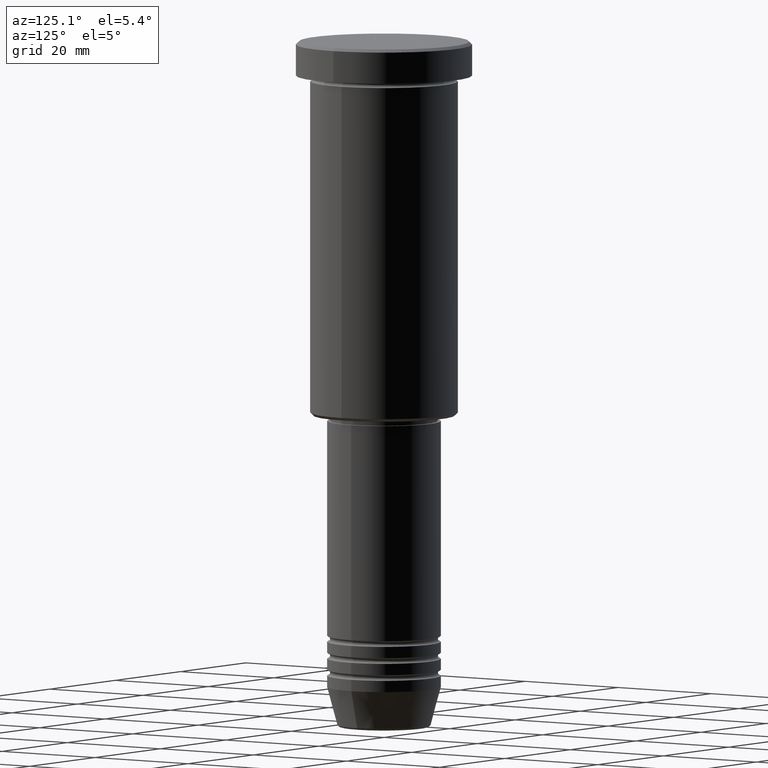
[diagram: clean part render]
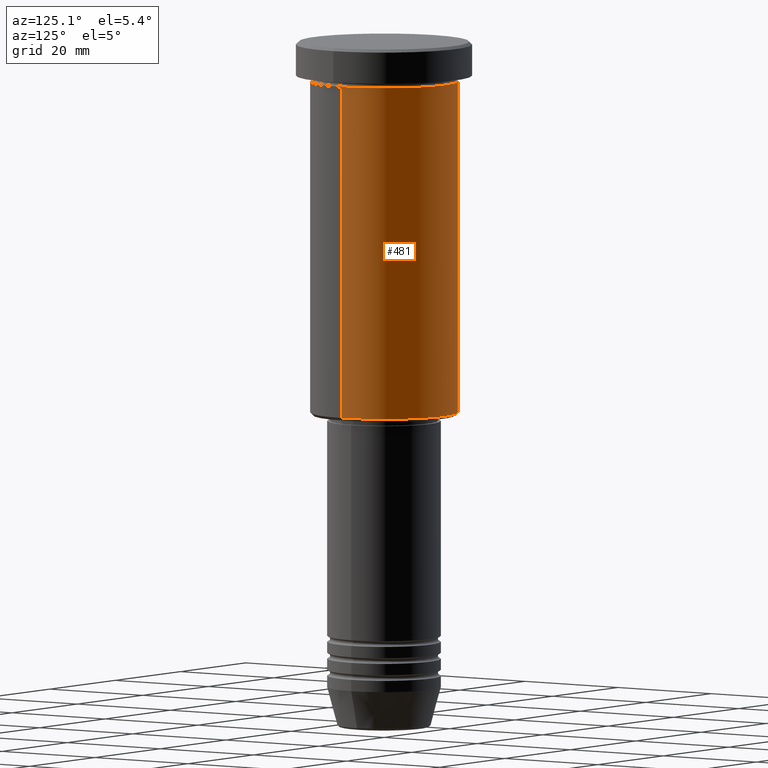
[diagram: same view with one face highlighted and labeled with its STEP entity id]
A machine part, auxiliary view. The second image highlights one B-rep face of the part: STEP entity #481.
In plain terms, the highlighted cylindrical surface (partial cylindrical patch) has radius 13 mm, axis along (-0, -0, 1).
Its self-contained STEP definition (entity closure, byte-faithful):
#29 = VECTOR ( 'NONE', #357, 1000.000000000000000 ) ;
#79 = CARTESIAN_POINT ( 'NONE',  ( 0.000000000000000000, 0.000000000000000000, 0.000000000000000000 ) ) ;
#81 = VECTOR ( 'NONE', #976, 1000.000000000000000 ) ;
#135 = EDGE_CURVE ( 'NONE', #857, #888, #1169, .T. ) ;
#136 = ORIENTED_EDGE ( 'NONE', *, *, #678, .F. ) ;
#146 = DIRECTION ( 'NONE',  ( -1.000000000000000000, 0.000000000000000000, 0.000000000000000000 ) ) ;
#214 = VERTEX_POINT ( 'NONE', #363 ) ;
#253 = VERTEX_POINT ( 'NONE', #1111 ) ;
#285 = ORIENTED_EDGE ( 'NONE', *, *, #135, .T. ) ;
#295 = ORIENTED_EDGE ( 'NONE', *, *, #488, .T. ) ;
#329 = AXIS2_PLACEMENT_3D ( 'NONE', #1176, #483, #1180 ) ;
#337 = DIRECTION ( 'NONE',  ( -0.000000000000000000, -0.000000000000000000, 1.000000000000000000 ) ) ;
#342 = FACE_OUTER_BOUND ( 'NONE', #749, .T. ) ;
#357 = DIRECTION ( 'NONE',  ( -0.000000000000000000, -0.000000000000000000, 1.000000000000000000 ) ) ;
#363 = CARTESIAN_POINT ( 'NONE',  ( 13.00000000000000000, 0.000000000000000000, -6.999999999999995559 ) ) ;
#451 = CARTESIAN_POINT ( 'NONE',  ( 13.00000000000000000, 0.000000000000000000, 0.000000000000000000 ) ) ;
#452 = CYLINDRICAL_SURFACE ( 'NONE', #589, 13.00000000000000000 ) ;
#481 = ADVANCED_FACE ( 'NONE', ( #342 ), #452, .T. ) ;
#483 = DIRECTION ( 'NONE',  ( -0.000000000000000000, -0.000000000000000000, 1.000000000000000000 ) ) ;
#488 = EDGE_CURVE ( 'NONE', #253, #857, #611, .T. ) ;
#589 = AXIS2_PLACEMENT_3D ( 'NONE', #79, #337, #899 ) ;
#611 = CIRCLE ( 'NONE', #758, 13.00000000000000000 ) ;
#678 = EDGE_CURVE ( 'NONE', #214, #888, #1026, .T. ) ;
#711 = CARTESIAN_POINT ( 'NONE',  ( 0.000000000000000000, 0.000000000000000000, -65.49999999999998579 ) ) ;
#736 = CARTESIAN_POINT ( 'NONE',  ( -13.00000000000000000, 1.592040838891559095E-15, -6.999999999999995559 ) ) ;
#737 = LINE ( 'NONE', #451, #29 ) ;
#749 = EDGE_LOOP ( 'NONE', ( #295, #285, #136, #854 ) ) ;
#758 = AXIS2_PLACEMENT_3D ( 'NONE', #711, #970, #146 ) ;
#854 = ORIENTED_EDGE ( 'NONE', *, *, #1144, .F. ) ;
#857 = VERTEX_POINT ( 'NONE', #1094 ) ;
#888 = VERTEX_POINT ( 'NONE', #736 ) ;
#899 = DIRECTION ( 'NONE',  ( 1.000000000000000000, 0.000000000000000000, 0.000000000000000000 ) ) ;
#970 = DIRECTION ( 'NONE',  ( -0.000000000000000000, -0.000000000000000000, 1.000000000000000000 ) ) ;
#976 = DIRECTION ( 'NONE',  ( -0.000000000000000000, -0.000000000000000000, 1.000000000000000000 ) ) ;
#990 = CARTESIAN_POINT ( 'NONE',  ( -13.00000000000000000, 1.592040838891559095E-15, 0.000000000000000000 ) ) ;
#1026 = CIRCLE ( 'NONE', #329, 13.00000000000000000 ) ;
#1094 = CARTESIAN_POINT ( 'NONE',  ( -13.00000000000000000, 1.592040838891559095E-15, -65.49999999999998579 ) ) ;
#1111 = CARTESIAN_POINT ( 'NONE',  ( 13.00000000000000000, 0.000000000000000000, -65.49999999999998579 ) ) ;
#1144 = EDGE_CURVE ( 'NONE', #253, #214, #737, .T. ) ;
#1169 = LINE ( 'NONE', #990, #81 ) ;
#1176 = CARTESIAN_POINT ( 'NONE',  ( 0.000000000000000000, 0.000000000000000000, -6.999999999999995559 ) ) ;
#1180 = DIRECTION ( 'NONE',  ( 1.000000000000000000, 0.000000000000000000, 0.000000000000000000 ) ) ;